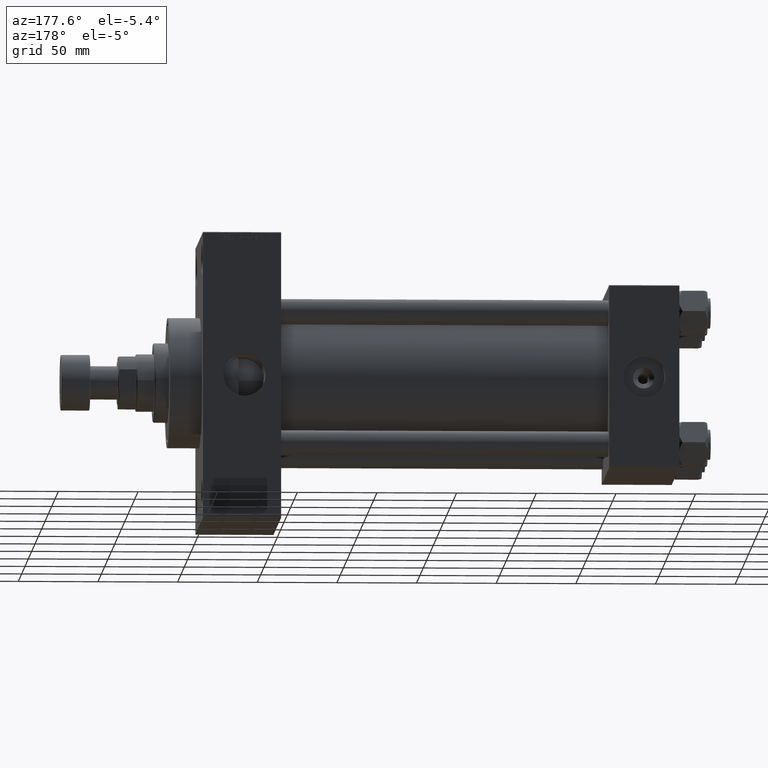
[diagram: clean part render]
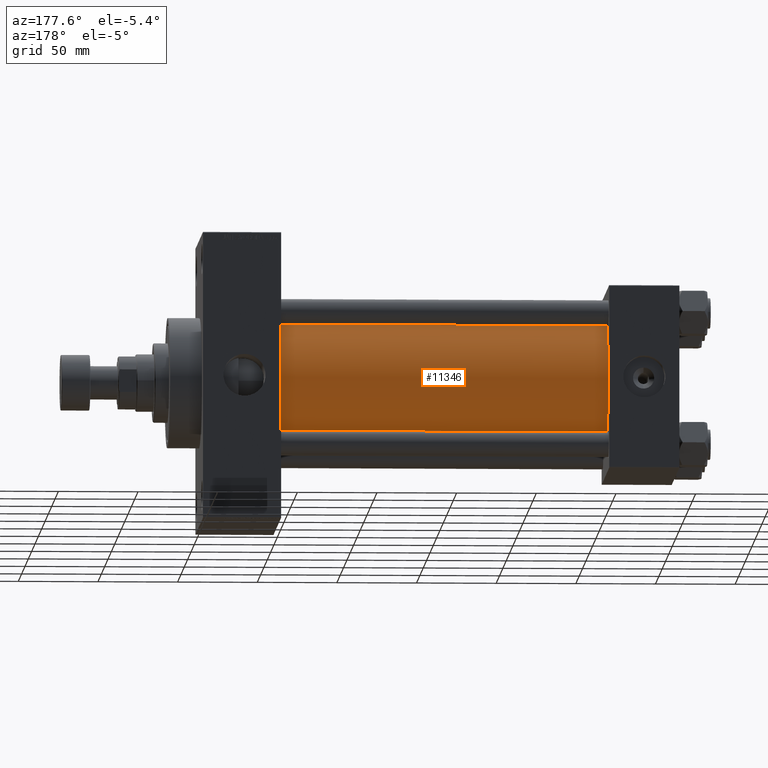
[diagram: same view with one face highlighted and labeled with its STEP entity id]
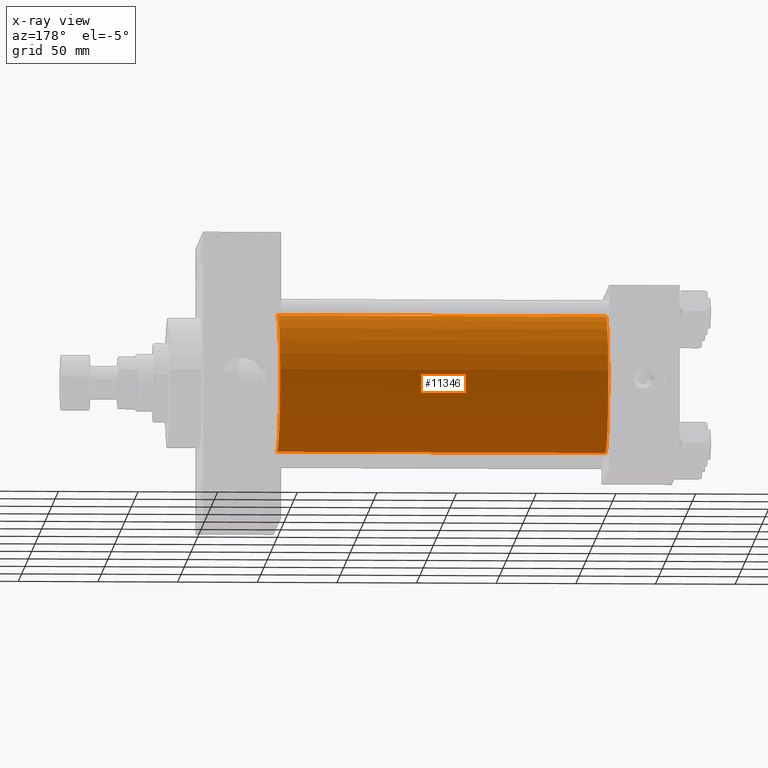
[diagram: x-ray of the same camera — body ghosted, the highlighted face saturated]
A machine part, auxiliary view. The second image highlights one B-rep face of the part: STEP entity #11346.
The next image is the same camera in x-ray: the body ghosted, the highlighted face saturated — about 0% of this face is hidden behind the body in this view.
In plain terms, the highlighted cylindrical surface (partial cylindrical patch) has radius 43 mm, axis along (-1, -0, -0).
Its self-contained STEP definition (entity closure, byte-faithful):
#366 = VECTOR ( 'NONE', #3038, 1000.000000000000000 ) ;
#1086 = VERTEX_POINT ( 'NONE', #29501 ) ;
#1631 = ORIENTED_EDGE ( 'NONE', *, *, #37383, .T. ) ;
#2917 = ORIENTED_EDGE ( 'NONE', *, *, #42138, .F. ) ;
#3038 = DIRECTION ( 'NONE',  ( -1.000000000000000000, -0.000000000000000000, -0.000000000000000000 ) ) ;
#3620 = AXIS2_PLACEMENT_3D ( 'NONE', #13469, #21282, #16654 ) ;
#7651 = CARTESIAN_POINT ( 'NONE',  ( 250.0000000000000000, 2.663896022368408223E-15, -43.00000000000000000 ) ) ;
#8242 = CARTESIAN_POINT ( 'NONE',  ( 250.0000000000000000, -2.602085213965210642E-15, 0.000000000000000000 ) ) ;
#9585 = DIRECTION ( 'NONE',  ( 0.000000000000000000, 0.000000000000000000, 1.000000000000000000 ) ) ;
#9664 = EDGE_LOOP ( 'NONE', ( #2917, #1631, #47639, #9765 ) ) ;
#9765 = ORIENTED_EDGE ( 'NONE', *, *, #33833, .F. ) ;
#11302 = LINE ( 'NONE', #7651, #12162 ) ;
#11346 = ADVANCED_FACE ( 'NONE', ( #42860 ), #43100, .T. ) ;
#12162 = VECTOR ( 'NONE', #37487, 1000.000000000000000 ) ;
#13469 = CARTESIAN_POINT ( 'NONE',  ( 43.99999999999998579, -2.602085213965210642E-15, 0.000000000000000000 ) ) ;
#16654 = DIRECTION ( 'NONE',  ( 0.000000000000000000, 0.000000000000000000, 1.000000000000000000 ) ) ;
#17403 = CARTESIAN_POINT ( 'NONE',  ( 250.0000000000000000, -2.602085213965210642E-15, 0.000000000000000000 ) ) ;
#18275 = DIRECTION ( 'NONE',  ( 1.000000000000000000, 0.000000000000000000, 0.000000000000000000 ) ) ;
#18427 = CIRCLE ( 'NONE', #3620, 43.00000000000000000 ) ;
#21282 = DIRECTION ( 'NONE',  ( 1.000000000000000000, -0.000000000000000000, 0.000000000000000000 ) ) ;
#25723 = CARTESIAN_POINT ( 'NONE',  ( 250.0000000000000000, -2.602085213965210642E-15, 43.00000000000000000 ) ) ;
#28668 = AXIS2_PLACEMENT_3D ( 'NONE', #8242, #18275, #30744 ) ;
#29501 = CARTESIAN_POINT ( 'NONE',  ( 43.99999999999998579, -2.602085213965210642E-15, 43.00000000000000000 ) ) ;
#30744 = DIRECTION ( 'NONE',  ( 0.000000000000000000, 0.000000000000000000, -1.000000000000000000 ) ) ;
#32388 = LINE ( 'NONE', #44113, #366 ) ;
#33085 = CARTESIAN_POINT ( 'NONE',  ( 250.0000000000000000, 2.663896022368408223E-15, -43.00000000000000000 ) ) ;
#33833 = EDGE_CURVE ( 'NONE', #45253, #1086, #32388, .T. ) ;
#34141 = VERTEX_POINT ( 'NONE', #34931 ) ;
#34628 = AXIS2_PLACEMENT_3D ( 'NONE', #17403, #38699, #9585 ) ;
#34931 = CARTESIAN_POINT ( 'NONE',  ( 43.99999999999998579, 2.663896022368408223E-15, -43.00000000000000000 ) ) ;
#37383 = EDGE_CURVE ( 'NONE', #47073, #34141, #11302, .T. ) ;
#37487 = DIRECTION ( 'NONE',  ( -1.000000000000000000, -0.000000000000000000, -0.000000000000000000 ) ) ;
#38699 = DIRECTION ( 'NONE',  ( -1.000000000000000000, -0.000000000000000000, -0.000000000000000000 ) ) ;
#41932 = CIRCLE ( 'NONE', #28668, 43.00000000000000000 ) ;
#42138 = EDGE_CURVE ( 'NONE', #47073, #45253, #41932, .T. ) ;
#42860 = FACE_OUTER_BOUND ( 'NONE', #9664, .T. ) ;
#43100 = CYLINDRICAL_SURFACE ( 'NONE', #34628, 43.00000000000000000 ) ;
#44113 = CARTESIAN_POINT ( 'NONE',  ( 250.0000000000000000, -2.602085213965210642E-15, 43.00000000000000000 ) ) ;
#45253 = VERTEX_POINT ( 'NONE', #25723 ) ;
#47073 = VERTEX_POINT ( 'NONE', #33085 ) ;
#47639 = ORIENTED_EDGE ( 'NONE', *, *, #48263, .T. ) ;
#48263 = EDGE_CURVE ( 'NONE', #34141, #1086, #18427, .T. ) ;